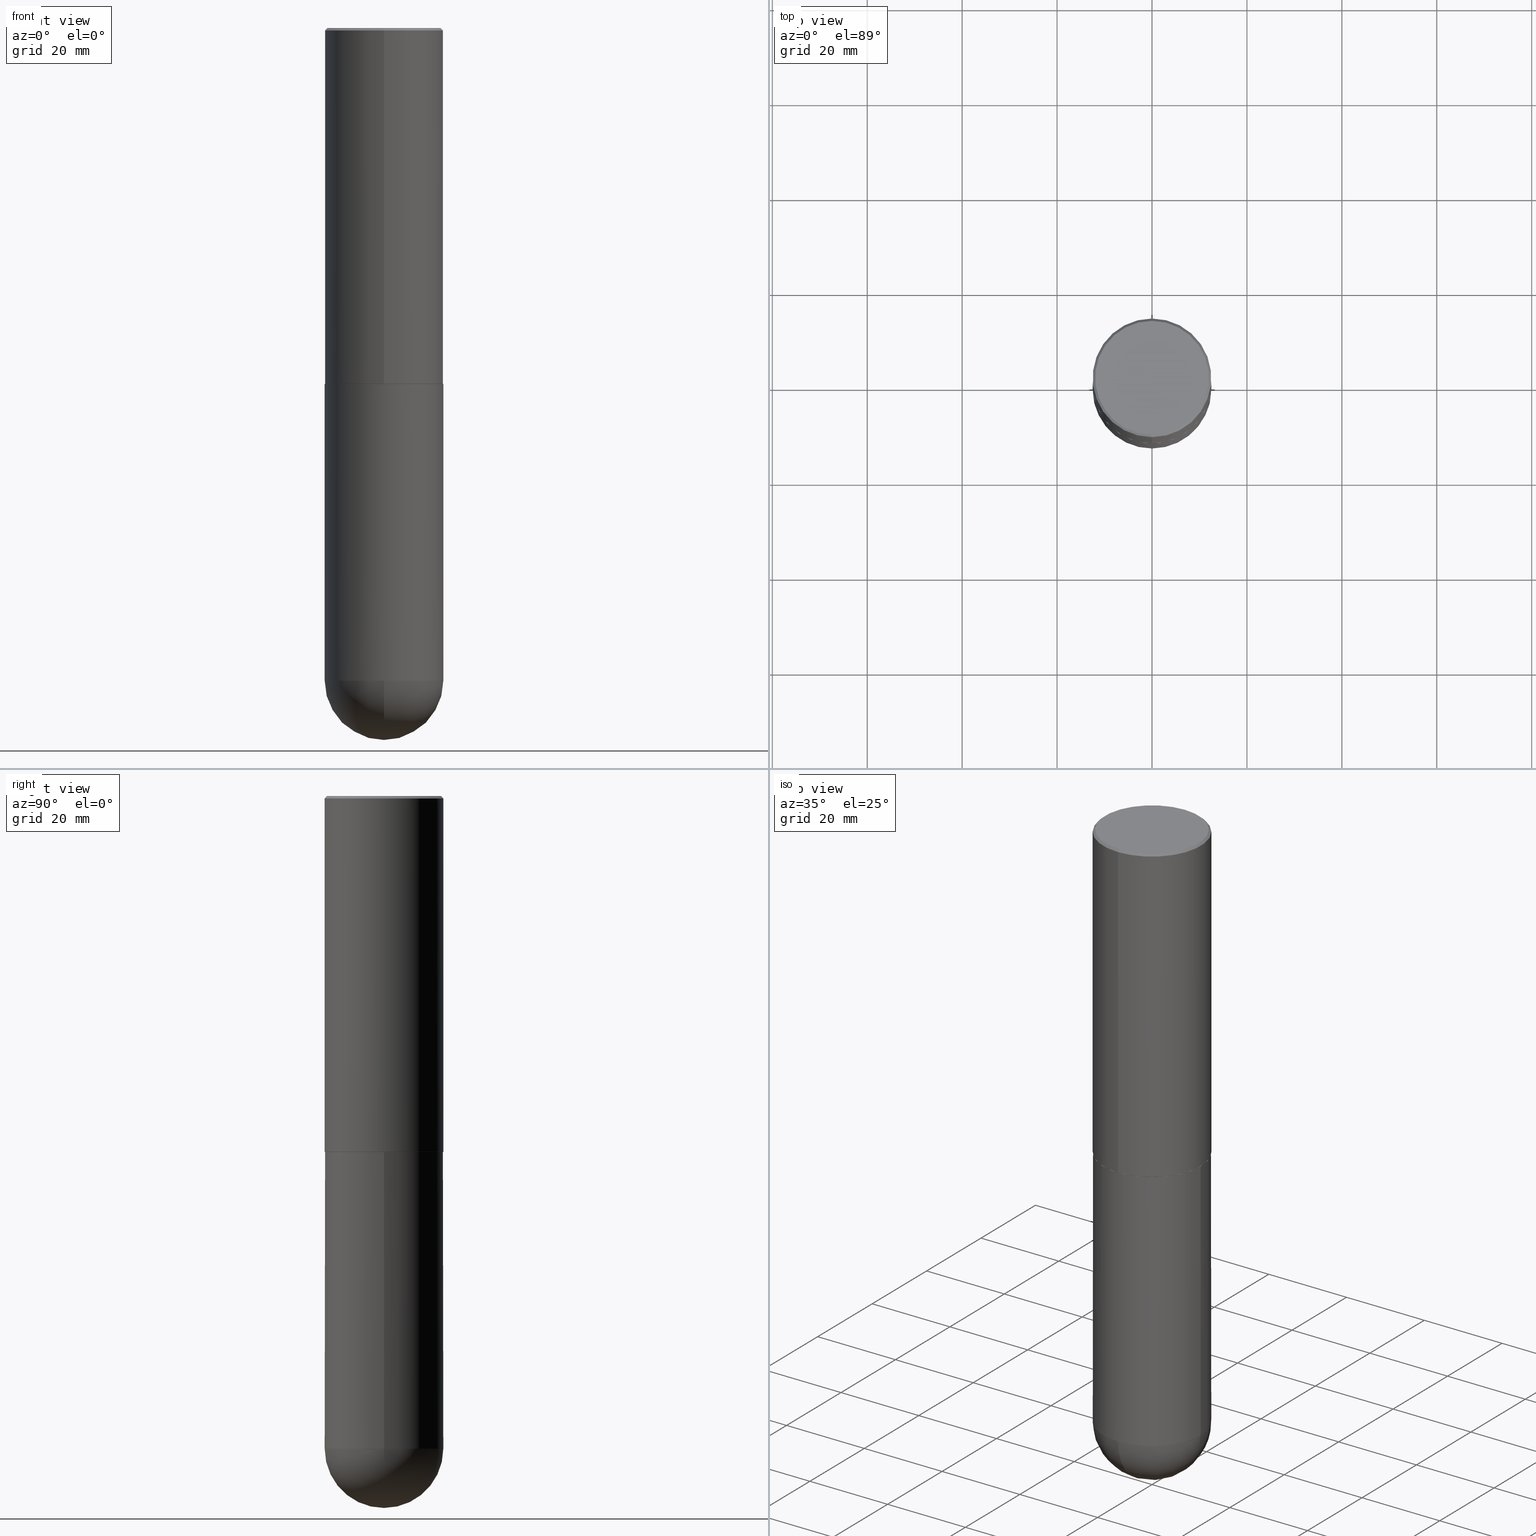
[diagram: canonical four-view strip — front | top / right | iso, engineering-drawing reading convention]
A machine part, canonical four-view strip (front | top / right | iso — engineering-drawing reading convention). The complete STEP part file that produces these views, byte-faithful:
ISO-10303-21;
HEADER;
FILE_DESCRIPTION (( 'STEP AP203' ),
    '1' );
FILE_NAME ('70550.STEP',
    '2024-04-10T12:35:27',
    ( '' ),
    ( '' ),
    'SwSTEP 2.0',
    'SolidWorks 2023',
    '' );
FILE_SCHEMA (( 'CONFIG_CONTROL_DESIGN' ));
ENDSEC;

DATA;
#1 = CIRCLE ( 'NONE', #120, 0.4911499999999999755 ) ;
#2 = AXIS2_PLACEMENT_3D ( 'NONE', #82, #268, #372 ) ;
#3 = VERTEX_POINT ( 'NONE', #152 ) ;
#4 = CARTESIAN_POINT ( 'NONE',  ( 3.297005828269569180E-15, 0.4721499999999997921, -1.531037957893813463E-15 ) ) ;
#5 = EDGE_CURVE ( 'NONE', #62, #41, #293, .T. ) ;
#6 = FACE_OUTER_BOUND ( 'NONE', #342, .T. ) ;
#7 = DIRECTION ( 'NONE',  ( -6.982962677686266711E-15, -1.000000000000000000, 3.491138808870824878E-15 ) ) ;
#8 = CARTESIAN_POINT ( 'NONE',  ( 1.290705878404842200E-28, -1.937479287376659043E-14, -5.413349999999999440 ) ) ;
#9 = PRODUCT_RELATED_PRODUCT_CATEGORY ( 'detail', '', ( #109 ) ) ;
#10 = APPLICATION_CONTEXT ( 'configuration controlled 3d designs of mechanical parts and assemblies' ) ;
#11 = ORIENTED_EDGE ( 'NONE', *, *, #340, .T. ) ;
#12 = DIRECTION ( 'NONE',  ( -2.445707993586407058E-29, 3.491138808870824878E-15, 1.000000000000000000 ) ) ;
#13 = APPROVAL_DATE_TIME ( #19, #376 ) ;
#14 = ORIENTED_EDGE ( 'NONE', *, *, #199, .F. ) ;
#15 = DIRECTION ( 'NONE',  ( 1.000000000000000000, -6.982962677686265922E-15, 0.000000000000000000 ) ) ;
#16 = CARTESIAN_POINT ( 'NONE',  ( 4.891415987172841090E-31, -6.982277617741688262E-17, -0.02000000000000010797 ) ) ;
#17 = EDGE_CURVE ( 'NONE', #45, #161, #35, .T. ) ;
#18 = DIRECTION ( 'NONE',  ( -2.445707993586407338E-29, 3.491138808870824484E-15, 1.000000000000000000 ) ) ;
#19 = DATE_AND_TIME ( #130, #186 ) ;
#20 = DATE_AND_TIME ( #71, #107 ) ;
#21 = DIRECTION ( 'NONE',  ( -6.982962677686265922E-15, -1.000000000000000000, 3.337287582609300506E-15 ) ) ;
#22 = ADVANCED_FACE ( 'NONE', ( #286 ), #127, .T. ) ;
#23 = CARTESIAN_POINT ( 'NONE',  ( 1.323817856196230713E-28, -1.890061050562653856E-14, -5.413349999999999440 ) ) ;
#24 = CONICAL_SURFACE ( 'NONE', #336, 0.4921500000000000319, 0.7853981633974463916 ) ;
#25 = DIRECTION ( 'NONE',  ( 6.982962677686265922E-15, 1.000000000000000000, -3.495297233588267070E-15 ) ) ;
#26 = CONICAL_SURFACE ( 'NONE', #75, 0.4911499999999999755, 0.7853981633977213939 ) ;
#27 = EDGE_LOOP ( 'NONE', ( #99, #361, #407, #371 ) ) ;
#28 = CC_DESIGN_PERSON_AND_ORGANIZATION_ASSIGNMENT ( #229, #163, ( #90 ) ) ;
#29 = ORIENTED_EDGE ( 'NONE', *, *, #17, .T. ) ;
#30 = AXIS2_PLACEMENT_3D ( 'NONE', #59, #34, #179 ) ;
#31 = ADVANCED_FACE ( 'NONE', ( #125 ), #24, .T. ) ;
#32 = CARTESIAN_POINT ( 'NONE',  ( 4.891415987172841090E-31, -6.982277617741688262E-17, -0.02000000000000010797 ) ) ;
#33 = CARTESIAN_POINT ( 'NONE',  ( -5.737788980641500358E-45, 8.190437223069574887E-31, 2.346064614290914687E-16 ) ) ;
#34 = DIRECTION ( 'NONE',  ( -2.445707993586407058E-29, 3.491138808870824878E-15, 1.000000000000000000 ) ) ;
#35 = LINE ( 'NONE', #149, #404 ) ;
#36 = EDGE_CURVE ( 'NONE', #351, #292, #227, .T. ) ;
#37 = AXIS2_PLACEMENT_3D ( 'NONE', #220, #269, #21 ) ;
#38 = DIRECTION ( 'NONE',  ( -2.445468806185136877E-29, 3.491481338843145188E-15, 1.000000000000000000 ) ) ;
#39 = ADVANCED_FACE ( 'NONE', ( #190 ), #259, .T. ) ;
#40 = LINE ( 'NONE', #362, #236 ) ;
#41 = VERTEX_POINT ( 'NONE', #390 ) ;
#42 = DIRECTION ( 'NONE',  ( 2.438088387897960049E-29, -3.491481338843145188E-15, -1.000000000000000000 ) ) ;
#43 = ORIENTED_EDGE ( 'NONE', *, *, #147, .F. ) ;
#44 = PLANE ( 'NONE',  #141 ) ;
#45 = VERTEX_POINT ( 'NONE', #70 ) ;
#46 = CARTESIAN_POINT ( 'NONE',  ( 0.4921499999999999764, -1.374596203102545079E-14, -2.952700000000000102 ) ) ;
#47 = DATE_AND_TIME ( #49, #111 ) ;
#48 = FACE_OUTER_BOUND ( 'NONE', #222, .T. ) ;
#49 = CALENDAR_DATE ( 2024, 10, 4 ) ;
#50 = ADVANCED_FACE ( 'NONE', ( #76 ), #44, .F. ) ;
#51 = CYLINDRICAL_SURFACE ( 'NONE', #2, 0.4921499999999999764 ) ;
#52 = ADVANCED_FACE ( 'NONE', ( #73 ), #393, .T. ) ;
#53 = CC_DESIGN_PERSON_AND_ORGANIZATION_ASSIGNMENT ( #335, #79, ( #55 ) ) ;
#54 = ORIENTED_EDGE ( 'NONE', *, *, #36, .T. ) ;
#55 = PRODUCT_DEFINITION_FORMATION_WITH_SPECIFIED_SOURCE ( 'ANY', '', #109, .NOT_KNOWN. ) ;
#56 = DIRECTION ( 'NONE',  ( 1.000000000000000000, -6.982962677686265922E-15, 0.000000000000000000 ) ) ;
#57 = CIRCLE ( 'NONE', #312, 0.4921500000000003094 ) ;
#58 = CARTESIAN_POINT ( 'NONE',  ( 7.221441992662584645E-29, -1.030828556095288414E-14, -2.952700000000000102 ) ) ;
#59 = CARTESIAN_POINT ( 'NONE',  ( 4.891415987172841090E-31, -6.982277617741688262E-17, -0.02000000000000010797 ) ) ;
#60 = EDGE_LOOP ( 'NONE', ( #249, #315, #385, #235 ) ) ;
#61 = CARTESIAN_POINT ( 'NONE',  ( 0.000000000000000000, 0.000000000000000000, 0.000000000000000000 ) ) ;
#62 = VERTEX_POINT ( 'NONE', #187 ) ;
#63 = CARTESIAN_POINT ( 'NONE',  ( 3.496936074043371157E-15, 0.4921499999999900399, -2.951700000000001545 ) ) ;
#64 =( GEOMETRIC_REPRESENTATION_CONTEXT ( 3 ) GLOBAL_UNCERTAINTY_ASSIGNED_CONTEXT ( ( #93 ) ) GLOBAL_UNIT_ASSIGNED_CONTEXT ( ( #341, #277, #145 ) ) REPRESENTATION_CONTEXT ( 'NONE', 'WORKASPACE' ) );
#65 =( LENGTH_UNIT ( ) NAMED_UNIT ( * ) SI_UNIT ( $, .METRE. ) );
#66 = VERTEX_POINT ( 'NONE', #398 ) ;
#67 = DIRECTION ( 'NONE',  ( -1.000000000000000000, 6.982962677686265922E-15, -4.876176775795935793E-29 ) ) ;
#68 = APPROVAL_STATUS ( 'not_yet_approved' ) ;
#69 = EDGE_LOOP ( 'NONE', ( #146, #328, #383, #377, #43 ) ) ;
#70 = CARTESIAN_POINT ( 'NONE',  ( -0.4921499999999999764, -1.110801765337101862E-14, -5.413349999999999440 ) ) ;
#71 = CALENDAR_DATE ( 2024, 10, 4 ) ;
#72 = EDGE_LOOP ( 'NONE', ( #233, #349, #382, #85 ) ) ;
#73 = FACE_OUTER_BOUND ( 'NONE', #210, .T. ) ;
#74 = AXIS2_PLACEMENT_3D ( 'NONE', #295, #200, #134 ) ;
#75 = AXIS2_PLACEMENT_3D ( 'NONE', #58, #148, #317 ) ;
#76 = FACE_OUTER_BOUND ( 'NONE', #358, .T. ) ;
#77 = COORDINATED_UNIVERSAL_TIME_OFFSET ( 5, 0, .BEHIND. ) ;
#78 = EDGE_CURVE ( 'NONE', #101, #66, #213, .T. ) ;
#79 = PERSON_AND_ORGANIZATION_ROLE ( 'creator' ) ;
#80 = CC_DESIGN_PERSON_AND_ORGANIZATION_ASSIGNMENT ( #221, #136, ( #98 ) ) ;
#81 = EDGE_CURVE ( 'NONE', #3, #101, #197, .T. ) ;
#82 = CARTESIAN_POINT ( 'NONE',  ( 0.000000000000000000, 0.000000000000000000, 0.000000000000000000 ) ) ;
#83 = CIRCLE ( 'NONE', #321, 0.4921499999999999764 ) ;
#84 = AXIS2_PLACEMENT_3D ( 'NONE', #97, #12, #128 ) ;
#85 = ORIENTED_EDGE ( 'NONE', *, *, #177, .F. ) ;
#86 = AXIS2_PLACEMENT_3D ( 'NONE', #243, #322, #326 ) ;
#87 = AXIS2_PLACEMENT_3D ( 'NONE', #167, #305, #403 ) ;
#88 = DIRECTION ( 'NONE',  ( -6.982962677686265922E-15, -1.000000000000000000, 3.491138808870824878E-15 ) ) ;
#89 = VERTEX_POINT ( 'NONE', #298 ) ;
#90 = PRODUCT_DEFINITION ( 'UNKNOWN', '', #55, #370 ) ;
#91 = DIRECTION ( 'NONE',  ( -4.851104656540954020E-15, -0.7071067811865485719, -0.7071067811865464625 ) ) ;
#92 = ORIENTED_EDGE ( 'NONE', *, *, #240, .F. ) ;
#93 = UNCERTAINTY_MEASURE_WITH_UNIT (LENGTH_MEASURE( 1.000000000000000082E-05 ), #341, 'distance_accuracy_value', 'NONE');
#94 = DIRECTION ( 'NONE',  ( 6.982962677686266711E-15, 1.000000000000000000, -4.440675393541420887E-15 ) ) ;
#95 = CARTESIAN_POINT ( 'NONE',  ( 3.366835455046432873E-15, 0.4721499999999997921, -1.413734727179267828E-15 ) ) ;
#96 = ORIENTED_EDGE ( 'NONE', *, *, #264, .F. ) ;
#97 = CARTESIAN_POINT ( 'NONE',  ( 7.221441992662584645E-29, -1.030828556095288414E-14, -2.952700000000000102 ) ) ;
#98 = SECURITY_CLASSIFICATION ( '', '', #257 ) ;
#99 = ORIENTED_EDGE ( 'NONE', *, *, #340, .F. ) ;
#100 = CARTESIAN_POINT ( 'NONE',  ( 7.220735744022852519E-29, -1.030929694920215502E-14, -2.952700000000000102 ) ) ;
#101 = VERTEX_POINT ( 'NONE', #63 ) ;
#102 = DIRECTION ( 'NONE',  ( -6.982962677686265922E-15, -1.000000000000000000, 3.337287582609300506E-15 ) ) ;
#103 = COORDINATED_UNIVERSAL_TIME_OFFSET ( 5, 0, .BEHIND. ) ;
#104 = DIRECTION ( 'NONE',  ( 2.445707993586407058E-29, -3.491138808870824878E-15, -1.000000000000000000 ) ) ;
#105 = CARTESIAN_POINT ( 'NONE',  ( 7.220735744022852519E-29, -1.030929694920215502E-14, -2.952700000000000102 ) ) ;
#106 = ADVANCED_FACE ( 'NONE', ( #48 ), #386, .F. ) ;
#107 = LOCAL_TIME ( 8, 35, 27.00000000000000000, #77 ) ;
#108 = CC_DESIGN_PERSON_AND_ORGANIZATION_ASSIGNMENT ( #365, #402, ( #55 ) ) ;
#109 = PRODUCT ( '70550', '70550', '', ( #296 ) ) ;
#110 = FACE_OUTER_BOUND ( 'NONE', #69, .T. ) ;
#111 = LOCAL_TIME ( 8, 35, 27.00000000000000000, #218 ) ;
#112 = EDGE_CURVE ( 'NONE', #239, #89, #1, .T. ) ;
#113 = CARTESIAN_POINT ( 'NONE',  ( 1.323817856196230713E-28, -1.890061050562653856E-14, -5.413349999999999440 ) ) ;
#114 = EDGE_CURVE ( 'NONE', #172, #161, #184, .T. ) ;
#115 = AXIS2_PLACEMENT_3D ( 'NONE', #217, #157, #247 ) ;
#116 = DIRECTION ( 'NONE',  ( -6.982962677686266711E-15, -1.000000000000000000, 3.491138808870824878E-15 ) ) ;
#117 = EDGE_CURVE ( 'NONE', #41, #45, #83, .T. ) ;
#118 = CARTESIAN_POINT ( 'NONE',  ( 1.323817856196230713E-28, -1.890061050562653856E-14, -5.413349999999999440 ) ) ;
#119 = ORIENTED_EDGE ( 'NONE', *, *, #147, .T. ) ;
#120 = AXIS2_PLACEMENT_3D ( 'NONE', #384, #284, #102 ) ;
#121 = ADVANCED_FACE ( 'NONE', ( #327 ), #155, .T. ) ;
#122 = ORIENTED_EDGE ( 'NONE', *, *, #112, .F. ) ;
#123 = DIRECTION ( 'NONE',  ( -2.445707993586407338E-29, 3.491138808870824484E-15, 1.000000000000000000 ) ) ;
#124 = DIRECTION ( 'NONE',  ( -2.445707993586407058E-29, 3.491138808870824484E-15, 1.000000000000000000 ) ) ;
#125 = FACE_OUTER_BOUND ( 'NONE', #27, .T. ) ;
#126 = LINE ( 'NONE', #226, #237 ) ;
#127 = CYLINDRICAL_SURFACE ( 'NONE', #158, 0.4921500000000001984 ) ;
#128 = DIRECTION ( 'NONE',  ( -6.982962677686265922E-15, -1.000000000000000000, 3.337287582609300506E-15 ) ) ;
#129 = VECTOR ( 'NONE', #204, 39.37007874015748143 ) ;
#130 = CALENDAR_DATE ( 2024, 10, 4 ) ;
#131 = ORIENTED_EDGE ( 'NONE', *, *, #177, .T. ) ;
#132 = CARTESIAN_POINT ( 'NONE',  ( 0.000000000000000000, 0.000000000000000000, 0.000000000000000000 ) ) ;
#133 = DIRECTION ( 'NONE',  ( -6.982962677686265922E-15, -1.000000000000000000, 3.491138808870824878E-15 ) ) ;
#134 = DIRECTION ( 'NONE',  ( 6.982962677686266711E-15, 1.000000000000000000, -4.440675393541420887E-15 ) ) ;
#135 = AXIS2_PLACEMENT_3D ( 'NONE', #260, #397, #133 ) ;
#136 = PERSON_AND_ORGANIZATION_ROLE ( 'classification_officer' ) ;
#137 = ADVANCED_BREP_SHAPE_REPRESENTATION ( '70550', ( #290, #280, #231 ), #64 ) ;
#138 = AXIS2_PLACEMENT_3D ( 'NONE', #171, #309, #116 ) ;
#139 = LINE ( 'NONE', #272, #389 ) ;
#140 = ORIENTED_EDGE ( 'NONE', *, *, #211, .T. ) ;
#141 = AXIS2_PLACEMENT_3D ( 'NONE', #4, #162, #333 ) ;
#142 = CIRCLE ( 'NONE', #37, 0.4911499999999999755 ) ;
#143 = DIRECTION ( 'NONE',  ( 1.000000000000000000, -6.982962677686265922E-15, 0.000000000000000000 ) ) ;
#144 = DIRECTION ( 'NONE',  ( -2.445468806185136597E-29, 3.491481338843145583E-15, 1.000000000000000000 ) ) ;
#145 =( NAMED_UNIT ( * ) SI_UNIT ( $, .STERADIAN. ) SOLID_ANGLE_UNIT ( ) );
#146 = ORIENTED_EDGE ( 'NONE', *, *, #17, .F. ) ;
#147 = EDGE_CURVE ( 'NONE', #161, #172, #387, .T. ) ;
#148 = DIRECTION ( 'NONE',  ( -2.445707993586407058E-29, 3.491138808870824878E-15, 1.000000000000000000 ) ) ;
#149 = CARTESIAN_POINT ( 'NONE',  ( -0.4921499999999999764, 3.496936074043332897E-15, -2.420853904668951509E-29 ) ) ;
#150 = AXIS2_PLACEMENT_3D ( 'NONE', #100, #193, #329 ) ;
#151 = CC_DESIGN_SECURITY_CLASSIFICATION ( #98, ( #55 ) ) ;
#152 = CARTESIAN_POINT ( 'NONE',  ( -3.436665081823225568E-15, -0.4921500000000106345, -2.951699999999998436 ) ) ;
#153 = FACE_OUTER_BOUND ( 'NONE', #60, .T. ) ;
#154 = ORIENTED_EDGE ( 'NONE', *, *, #264, .T. ) ;
#155 = CYLINDRICAL_SURFACE ( 'NONE', #216, 0.4921499999999999764 ) ;
#156 = ORIENTED_EDGE ( 'NONE', *, *, #117, .F. ) ;
#157 = DIRECTION ( 'NONE',  ( -2.445707993586407058E-29, 3.491138808870824878E-15, 1.000000000000000000 ) ) ;
#158 = AXIS2_PLACEMENT_3D ( 'NONE', #252, #281, #7 ) ;
#159 = VECTOR ( 'NONE', #91, 39.37007874015748143 ) ;
#160 = DATE_TIME_ROLE ( 'creation_date' ) ;
#161 = VERTEX_POINT ( 'NONE', #223 ) ;
#162 = DIRECTION ( 'NONE',  ( 2.445707993586407058E-29, -3.491138808870824484E-15, -1.000000000000000000 ) ) ;
#163 = PERSON_AND_ORGANIZATION_ROLE ( 'creator' ) ;
#164 = DIRECTION ( 'NONE',  ( 2.445707993586407058E-29, -3.491138808870824878E-15, -1.000000000000000000 ) ) ;
#165 = APPLICATION_PROTOCOL_DEFINITION ( 'international standard', 'config_control_design', 1994, #10 ) ;
#166 = APPROVAL_PERSON_ORGANIZATION ( #400, #399, #191 ) ;
#167 = CARTESIAN_POINT ( 'NONE',  ( 4.891415987172841090E-31, -6.982277617741688262E-17, -0.02000000000000010797 ) ) ;
#168 = CONICAL_SURFACE ( 'NONE', #84, 0.4911499999999999755, 0.7853981633977213939 ) ;
#169 = DIRECTION ( 'NONE',  ( -2.445468806185136597E-29, 3.491481338843145583E-15, 1.000000000000000000 ) ) ;
#170 = EDGE_CURVE ( 'NONE', #89, #101, #40, .T. ) ;
#171 = CARTESIAN_POINT ( 'NONE',  ( 0.000000000000000000, 0.000000000000000000, 0.000000000000000000 ) ) ;
#172 = VERTEX_POINT ( 'NONE', #46 ) ;
#173 = PERSON ( 'UNSPECIFIED', 'UNSPECIFIED', 'UNSPECIFIED', ('UNSPECIFIED'), ('UNSPECIFIED'), ('UNSPECIFIED') ) ;
#174 = CARTESIAN_POINT ( 'NONE',  ( 0.4921499999999999764, -1.804161880923764651E-14, -5.413349999999999440 ) ) ;
#175 = ORIENTED_EDGE ( 'NONE', *, *, #78, .F. ) ;
#176 = AXIS2_PLACEMENT_3D ( 'NONE', #325, #124, #287 ) ;
#177 = EDGE_CURVE ( 'NONE', #3, #212, #126, .T. ) ;
#178 = EDGE_LOOP ( 'NONE', ( #175, #258, #131, #96 ) ) ;
#179 = DIRECTION ( 'NONE',  ( -6.982962677686265922E-15, -1.000000000000000000, 3.495297233588267070E-15 ) ) ;
#180 = DIRECTION ( 'NONE',  ( -2.445707993586407058E-29, 3.491138808870824878E-15, 1.000000000000000000 ) ) ;
#181 = ORIENTED_EDGE ( 'NONE', *, *, #355, .T. ) ;
#182 = DIRECTION ( 'NONE',  ( -2.445468806185136597E-29, 3.491481338843145583E-15, 1.000000000000000000 ) ) ;
#183 = EDGE_LOOP ( 'NONE', ( #214, #29, #195, #354, #207 ) ) ;
#184 = CIRCLE ( 'NONE', #150, 0.4921499999999999764 ) ;
#185 = ADVANCED_FACE ( 'NONE', ( #153 ), #168, .T. ) ;
#186 = LOCAL_TIME ( 8, 35, 27.00000000000000000, #301 ) ;
#187 = CARTESIAN_POINT ( 'NONE',  ( 1.413163976147341948E-28, -2.106298991856822883E-14, -5.905499999999999972 ) ) ;
#188 = DIRECTION ( 'NONE',  ( -7.105427357601001070E-15, -1.000000000000000000, 0.000000000000000000 ) ) ;
#189 = ORIENTED_EDGE ( 'NONE', *, *, #112, .T. ) ;
#190 = FACE_OUTER_BOUND ( 'NONE', #313, .T. ) ;
#191 = APPROVAL_ROLE ( '' ) ;
#192 = ORIENTED_EDGE ( 'NONE', *, *, #5, .F. ) ;
#193 = DIRECTION ( 'NONE',  ( -2.445468806185136597E-29, 3.491481338843145583E-15, 1.000000000000000000 ) ) ;
#194 = APPROVAL_ROLE ( '' ) ;
#195 = ORIENTED_EDGE ( 'NONE', *, *, #114, .F. ) ;
#196 = DIRECTION ( 'NONE',  ( 5.024295867789434219E-15, 0.7071067811867430830, 0.7071067811863519514 ) ) ;
#197 = CIRCLE ( 'NONE', #115, 0.4921500000000003094 ) ;
#198 = CIRCLE ( 'NONE', #87, 0.4921500000000000319 ) ;
#199 = EDGE_CURVE ( 'NONE', #89, #239, #142, .T. ) ;
#200 = DIRECTION ( 'NONE',  ( -1.000000000000000000, 6.982962677686266711E-15, -4.883557194083112901E-29 ) ) ;
#201 = CALENDAR_DATE ( 2024, 10, 4 ) ;
#202 = PERSON_AND_ORGANIZATION ( #173, #228 ) ;
#203 = AXIS2_PLACEMENT_3D ( 'NONE', #105, #324, #15 ) ;
#204 = DIRECTION ( 'NONE',  ( 4.937700262164537787E-15, 0.7071067811865436870, -0.7071067811865513475 ) ) ;
#205 = LINE ( 'NONE', #232, #129 ) ;
#206 = FACE_OUTER_BOUND ( 'NONE', #178, .T. ) ;
#207 = ORIENTED_EDGE ( 'NONE', *, *, #279, .T. ) ;
#208 = CARTESIAN_POINT ( 'NONE',  ( 7.218996284668997343E-29, -1.030479442214401424E-14, -2.951700000000000212 ) ) ;
#209 = CC_DESIGN_APPROVAL ( #399, ( #90 ) ) ;
#210 = EDGE_LOOP ( 'NONE', ( #192, #181, #388, #156 ) ) ;
#211 = EDGE_CURVE ( 'NONE', #351, #66, #205, .T. ) ;
#212 = VERTEX_POINT ( 'NONE', #314 ) ;
#213 = LINE ( 'NONE', #250, #253 ) ;
#214 = ORIENTED_EDGE ( 'NONE', *, *, #117, .T. ) ;
#215 = CC_DESIGN_PERSON_AND_ORGANIZATION_ASSIGNMENT ( #367, #363, ( #109 ) ) ;
#216 = AXIS2_PLACEMENT_3D ( 'NONE', #132, #289, #256 ) ;
#217 = CARTESIAN_POINT ( 'NONE',  ( 7.218996284668997343E-29, -1.030479442214401424E-14, -2.951700000000000212 ) ) ;
#218 = COORDINATED_UNIVERSAL_TIME_OFFSET ( 5, 0, .BEHIND. ) ;
#219 = EDGE_LOOP ( 'NONE', ( #122, #14 ) ) ;
#220 = CARTESIAN_POINT ( 'NONE',  ( 7.221441992662584645E-29, -1.030828556095288414E-14, -2.952700000000000102 ) ) ;
#221 = PERSON_AND_ORGANIZATION ( #173, #228 ) ;
#222 = EDGE_LOOP ( 'NONE', ( #275, #119 ) ) ;
#223 = CARTESIAN_POINT ( 'NONE',  ( -0.4921499999999999764, -1.110801765337101547E-14, -2.952700000000000102 ) ) ;
#224 = ADVANCED_FACE ( 'NONE', ( #206 ), #408, .T. ) ;
#225 = DATE_AND_TIME ( #201, #375 ) ;
#226 = CARTESIAN_POINT ( 'NONE',  ( -3.436665081823297354E-15, -0.4921500000000001984, 1.718163964785777103E-15 ) ) ;
#227 = CIRCLE ( 'NONE', #135, 0.4721499999999997921 ) ;
#228 = ORGANIZATION ( 'UNSPECIFIED', 'UNSPECIFIED', '' ) ;
#229 = PERSON_AND_ORGANIZATION ( #173, #228 ) ;
#230 = ADVANCED_FACE ( 'NONE', ( #378 ), #303, .T. ) ;
#231 = AXIS2_PLACEMENT_3D ( 'NONE', #61, #395, #357 ) ;
#232 = CARTESIAN_POINT ( 'NONE',  ( 3.436665081823296565E-15, 0.4921499999999999764, -0.02000000000000182535 ) ) ;
#233 = ORIENTED_EDGE ( 'NONE', *, *, #81, .T. ) ;
#234 = CARTESIAN_POINT ( 'NONE',  ( -3.307789109625542536E-15, -0.4721499999999997921, 1.882947650037450765E-15 ) ) ;
#235 = ORIENTED_EDGE ( 'NONE', *, *, #311, .F. ) ;
#236 = VECTOR ( 'NONE', #196, 39.37007874015748143 ) ;
#237 = VECTOR ( 'NONE', #18, 39.37007874015748143 ) ;
#238 = DIMENSIONAL_EXPONENTS ( 1.000000000000000000, 0.000000000000000000, 0.000000000000000000, 0.000000000000000000, 0.000000000000000000, 0.000000000000000000, 0.000000000000000000 ) ;
#239 = VERTEX_POINT ( 'NONE', #274 ) ;
#240 = EDGE_CURVE ( 'NONE', #246, #318, #270, .T. ) ;
#241 = CARTESIAN_POINT ( 'NONE',  ( -3.376394089603258656E-15, -0.4921500000000000874, -0.01999999999999838712 ) ) ;
#242 = LENGTH_MEASURE_WITH_UNIT ( LENGTH_MEASURE( 0.02539999999999999897 ), #65 );
#243 = CARTESIAN_POINT ( 'NONE',  ( 1.290705878404842200E-28, -1.937479287376659043E-14, -5.413349999999999440 ) ) ;
#244 = CIRCLE ( 'NONE', #255, 0.4921499999999999764 ) ;
#245 = EDGE_CURVE ( 'NONE', #239, #3, #139, .T. ) ;
#246 = VERTEX_POINT ( 'NONE', #316 ) ;
#247 = DIRECTION ( 'NONE',  ( -6.982962677686265922E-15, -1.000000000000000000, 3.330506545156063891E-15 ) ) ;
#248 = DIRECTION ( 'NONE',  ( -1.000000000000000000, 7.105427357601001070E-15, -4.926315508542082329E-29 ) ) ;
#249 = ORIENTED_EDGE ( 'NONE', *, *, #170, .F. ) ;
#250 = CARTESIAN_POINT ( 'NONE',  ( 3.496936074043333686E-15, 0.4921500000000001984, -1.718163964785777103E-15 ) ) ;
#251 = PLANE ( 'NONE',  #176 ) ;
#252 = CARTESIAN_POINT ( 'NONE',  ( 0.000000000000000000, 0.000000000000000000, 0.000000000000000000 ) ) ;
#253 = VECTOR ( 'NONE', #123, 39.37007874015748143 ) ;
#254 = APPROVAL_DATE_TIME ( #266, #283 ) ;
#255 = AXIS2_PLACEMENT_3D ( 'NONE', #23, #169, #56 ) ;
#256 = DIRECTION ( 'NONE',  ( 1.000000000000000000, -6.982962677686265922E-15, 4.876176775795935793E-29 ) ) ;
#257 = SECURITY_CLASSIFICATION_LEVEL ( 'unclassified' ) ;
#258 = ORIENTED_EDGE ( 'NONE', *, *, #311, .T. ) ;
#259 = SPHERICAL_SURFACE ( 'NONE', #74, 0.4921500000000000874 ) ;
#260 = CARTESIAN_POINT ( 'NONE',  ( -5.737788980641500358E-45, 8.190437223069574887E-31, 2.346064614290914687E-16 ) ) ;
#261 = DIRECTION ( 'NONE',  ( 1.000000000000000000, -6.982962677686265922E-15, 0.000000000000000000 ) ) ;
#262 = AXIS2_PLACEMENT_3D ( 'NONE', #8, #359, #94 ) ;
#263 = CIRCLE ( 'NONE', #307, 0.4921499999999999764 ) ;
#264 = EDGE_CURVE ( 'NONE', #66, #212, #331, .T. ) ;
#265 = DATE_TIME_ROLE ( 'classification_date' ) ;
#266 = DATE_AND_TIME ( #401, #271 ) ;
#267 = PRODUCT_DEFINITION_SHAPE ( 'NONE', 'NONE',  #90 ) ;
#268 = DIRECTION ( 'NONE',  ( -2.445468806185136597E-29, 3.491481338843145583E-15, 1.000000000000000000 ) ) ;
#269 = DIRECTION ( 'NONE',  ( -2.445707993586407058E-29, 3.491138808870824878E-15, 1.000000000000000000 ) ) ;
#270 = CIRCLE ( 'NONE', #380, 0.4921499999999999764 ) ;
#271 = LOCAL_TIME ( 8, 35, 27.00000000000000000, #391 ) ;
#272 = CARTESIAN_POINT ( 'NONE',  ( -3.429682119145537187E-15, -0.4911500000000103006, -2.952699999999998326 ) ) ;
#273 = ADVANCED_FACE ( 'NONE', ( #110 ), #51, .T. ) ;
#274 = CARTESIAN_POINT ( 'NONE',  ( -3.429682119145537187E-15, -0.4911500000000103006, -2.952699999999998326 ) ) ;
#275 = ORIENTED_EDGE ( 'NONE', *, *, #114, .T. ) ;
#276 = VECTOR ( 'NONE', #345, 39.37007874015748143 ) ;
#277 =( NAMED_UNIT ( * ) PLANE_ANGLE_UNIT ( ) SI_UNIT ( $, .RADIAN. ) );
#278 = DIRECTION ( 'NONE',  ( 1.000000000000000000, -6.982962677686265922E-15, 0.000000000000000000 ) ) ;
#279 = EDGE_CURVE ( 'NONE', #318, #41, #244, .T. ) ;
#280 = MANIFOLD_SOLID_BREP ( 'Body-Move/Copy2[2]', #302 ) ;
#281 = DIRECTION ( 'NONE',  ( -2.445707993586407058E-29, 3.491138808870824878E-15, 1.000000000000000000 ) ) ;
#282 = APPROVAL_PERSON_ORGANIZATION ( #334, #376, #194 ) ;
#283 = APPROVAL ( #291, 'UNSPECIFIED' ) ;
#284 = DIRECTION ( 'NONE',  ( -2.445707993586407058E-29, 3.491138808870824878E-15, 1.000000000000000000 ) ) ;
#285 = FACE_OUTER_BOUND ( 'NONE', #219, .T. ) ;
#286 = FACE_OUTER_BOUND ( 'NONE', #72, .T. ) ;
#287 = DIRECTION ( 'NONE',  ( -6.982962677686265922E-15, -1.000000000000000000, 3.491138808870824484E-15 ) ) ;
#288 = ORIENTED_EDGE ( 'NONE', *, *, #279, .F. ) ;
#289 = DIRECTION ( 'NONE',  ( -2.445468806185136597E-29, 3.491481338843145583E-15, 1.000000000000000000 ) ) ;
#290 = MANIFOLD_SOLID_BREP ( 'Body-Move/Copy2[1]', #343 ) ;
#291 = APPROVAL_STATUS ( 'not_yet_approved' ) ;
#292 = VERTEX_POINT ( 'NONE', #234 ) ;
#293 = CIRCLE ( 'NONE', #86, 0.4921500000000000874 ) ;
#294 = AXIS2_PLACEMENT_3D ( 'NONE', #33, #180, #88 ) ;
#295 = CARTESIAN_POINT ( 'NONE',  ( 1.290705878404842200E-28, -1.937479287376659043E-14, -5.413349999999999440 ) ) ;
#296 = MECHANICAL_CONTEXT ( 'NONE', #396, 'mechanical' ) ;
#297 = DIRECTION ( 'NONE',  ( 6.982962677686265922E-15, 1.000000000000000000, -3.495297233588267070E-15 ) ) ;
#298 = CARTESIAN_POINT ( 'NONE',  ( 3.493383360364605362E-15, 0.4911499999999896504, -2.952700000000001435 ) ) ;
#299 = SHAPE_DEFINITION_REPRESENTATION ( #267, #137 ) ;
#300 = EDGE_CURVE ( 'NONE', #212, #66, #198, .T. ) ;
#301 = COORDINATED_UNIVERSAL_TIME_OFFSET ( 5, 0, .BEHIND. ) ;
#302 = CLOSED_SHELL ( 'NONE', ( #379, #22, #31, #230, #224, #185, #368, #50 ) ) ;
#303 = CONICAL_SURFACE ( 'NONE', #405, 0.4921500000000000319, 0.7853981633974463916 ) ;
#304 = APPROVAL_ROLE ( '' ) ;
#305 = DIRECTION ( 'NONE',  ( -2.445707993586407058E-29, 3.491138808870824878E-15, 1.000000000000000000 ) ) ;
#306 = EDGE_CURVE ( 'NONE', #318, #172, #339, .T. ) ;
#307 = AXIS2_PLACEMENT_3D ( 'NONE', #118, #182, #143 ) ;
#308 = ORIENTED_EDGE ( 'NONE', *, *, #5, .T. ) ;
#309 = DIRECTION ( 'NONE',  ( -2.445707993586407058E-29, 3.491138808870824878E-15, 1.000000000000000000 ) ) ;
#310 = ORIENTED_EDGE ( 'NONE', *, *, #36, .F. ) ;
#311 = EDGE_CURVE ( 'NONE', #101, #3, #57, .T. ) ;
#312 = AXIS2_PLACEMENT_3D ( 'NONE', #208, #348, #350 ) ;
#313 = EDGE_LOOP ( 'NONE', ( #392, #308, #288, #92 ) ) ;
#314 = CARTESIAN_POINT ( 'NONE',  ( -3.376394089603258656E-15, -0.4921500000000000874, -0.01999999999999838712 ) ) ;
#315 = ORIENTED_EDGE ( 'NONE', *, *, #199, .T. ) ;
#316 = CARTESIAN_POINT ( 'NONE',  ( -3.496936074043201946E-15, -0.4921500000000192387, -5.413349999999997664 ) ) ;
#317 = DIRECTION ( 'NONE',  ( -6.982962677686265922E-15, -1.000000000000000000, 3.337287582609300506E-15 ) ) ;
#318 = VERTEX_POINT ( 'NONE', #174 ) ;
#319 = CC_DESIGN_DATE_AND_TIME_ASSIGNMENT ( #47, #160, ( #90 ) ) ;
#320 = CARTESIAN_POINT ( 'NONE',  ( 0.4921499999999999764, -3.436665081823295777E-15, 2.399810400207969603E-29 ) ) ;
#321 = AXIS2_PLACEMENT_3D ( 'NONE', #352, #364, #261 ) ;
#322 = DIRECTION ( 'NONE',  ( 1.000000000000000000, -6.982962677686265922E-15, 4.883557194083112340E-29 ) ) ;
#323 = AXIS2_PLACEMENT_3D ( 'NONE', #353, #248, #188 ) ;
#324 = DIRECTION ( 'NONE',  ( -2.445468806185136597E-29, 3.491481338843145583E-15, 1.000000000000000000 ) ) ;
#325 = CARTESIAN_POINT ( 'NONE',  ( 7.221441992662584645E-29, -1.030828556095288414E-14, -2.952700000000000102 ) ) ;
#326 = DIRECTION ( 'NONE',  ( 6.982962677686265922E-15, 1.000000000000000000, 0.000000000000000000 ) ) ;
#327 = FACE_OUTER_BOUND ( 'NONE', #183, .T. ) ;
#328 = ORIENTED_EDGE ( 'NONE', *, *, #347, .T. ) ;
#329 = DIRECTION ( 'NONE',  ( 1.000000000000000000, -6.982962677686265922E-15, 0.000000000000000000 ) ) ;
#330 = ORIENTED_EDGE ( 'NONE', *, *, #81, .F. ) ;
#331 = CIRCLE ( 'NONE', #30, 0.4921500000000000319 ) ;
#332 = APPROVAL_STATUS ( 'not_yet_approved' ) ;
#333 = DIRECTION ( 'NONE',  ( 6.982962677686265922E-15, 1.000000000000000000, -3.491138808870824484E-15 ) ) ;
#334 = PERSON_AND_ORGANIZATION ( #173, #228 ) ;
#335 = PERSON_AND_ORGANIZATION ( #173, #228 ) ;
#336 = AXIS2_PLACEMENT_3D ( 'NONE', #16, #104, #297 ) ;
#337 = CC_DESIGN_APPROVAL ( #376, ( #55 ) ) ;
#338 = CC_DESIGN_APPROVAL ( #283, ( #98 ) ) ;
#339 = LINE ( 'NONE', #320, #276 ) ;
#340 = EDGE_CURVE ( 'NONE', #292, #351, #369, .T. ) ;
#341 =( CONVERSION_BASED_UNIT ( 'INCH', #242 ) LENGTH_UNIT ( ) NAMED_UNIT ( #238 ) );
#342 = EDGE_LOOP ( 'NONE', ( #189, #412, #330, #373 ) ) ;
#343 = CLOSED_SHELL ( 'NONE', ( #121, #52, #39, #106, #273 ) ) ;
#344 = APPROVAL_PERSON_ORGANIZATION ( #202, #283, #304 ) ;
#345 = DIRECTION ( 'NONE',  ( -2.445468806185136877E-29, 3.491481338843145188E-15, 1.000000000000000000 ) ) ;
#346 = EDGE_LOOP ( 'NONE', ( #410, #310, #140, #154 ) ) ;
#347 = EDGE_CURVE ( 'NONE', #45, #246, #263, .T. ) ;
#348 = DIRECTION ( 'NONE',  ( -2.445707993586407058E-29, 3.491138808870824878E-15, 1.000000000000000000 ) ) ;
#349 = ORIENTED_EDGE ( 'NONE', *, *, #78, .T. ) ;
#350 = DIRECTION ( 'NONE',  ( -6.982962677686265922E-15, -1.000000000000000000, 3.330506545156063891E-15 ) ) ;
#351 = VERTEX_POINT ( 'NONE', #95 ) ;
#352 = CARTESIAN_POINT ( 'NONE',  ( 1.323817856196230713E-28, -1.890061050562653856E-14, -5.413349999999999440 ) ) ;
#353 = CARTESIAN_POINT ( 'NONE',  ( 1.290705878404842200E-28, -1.937479287376659043E-14, -5.413349999999999440 ) ) ;
#354 = ORIENTED_EDGE ( 'NONE', *, *, #306, .F. ) ;
#355 = EDGE_CURVE ( 'NONE', #62, #246, #409, .T. ) ;
#356 = CARTESIAN_POINT ( 'NONE',  ( 3.436665081823367957E-15, 0.4921499999999896513, -2.952700000000001435 ) ) ;
#357 = DIRECTION ( 'NONE',  ( 1.000000000000000000, 0.000000000000000000, 0.000000000000000000 ) ) ;
#358 = EDGE_LOOP ( 'NONE', ( #54, #11 ) ) ;
#359 = DIRECTION ( 'NONE',  ( -1.000000000000000000, 6.982962677686266711E-15, -4.883557194083112901E-29 ) ) ;
#360 = APPROVAL_DATE_TIME ( #225, #399 ) ;
#361 = ORIENTED_EDGE ( 'NONE', *, *, #394, .T. ) ;
#362 = CARTESIAN_POINT ( 'NONE',  ( 3.489830646685803675E-15, 0.4911499999999896504, -2.952700000000001435 ) ) ;
#363 = PERSON_AND_ORGANIZATION_ROLE ( 'design_owner' ) ;
#364 = DIRECTION ( 'NONE',  ( -2.445468806185136597E-29, 3.491481338843145583E-15, 1.000000000000000000 ) ) ;
#365 = PERSON_AND_ORGANIZATION ( #173, #228 ) ;
#366 = CC_DESIGN_DATE_AND_TIME_ASSIGNMENT ( #20, #265, ( #98 ) ) ;
#367 = PERSON_AND_ORGANIZATION ( #173, #228 ) ;
#368 = ADVANCED_FACE ( 'NONE', ( #285 ), #251, .F. ) ;
#369 = CIRCLE ( 'NONE', #294, 0.4721499999999997921 ) ;
#370 = DESIGN_CONTEXT ( 'detailed design', #10, 'design' ) ;
#371 = ORIENTED_EDGE ( 'NONE', *, *, #211, .F. ) ;
#372 = DIRECTION ( 'NONE',  ( 1.000000000000000000, -6.982962677686265922E-15, 4.876176775795935793E-29 ) ) ;
#373 = ORIENTED_EDGE ( 'NONE', *, *, #245, .F. ) ;
#374 = AXIS2_PLACEMENT_3D ( 'NONE', #356, #42, #67 ) ;
#375 = LOCAL_TIME ( 8, 35, 27.00000000000000000, #103 ) ;
#376 = APPROVAL ( #68, 'UNSPECIFIED' ) ;
#377 = ORIENTED_EDGE ( 'NONE', *, *, #306, .T. ) ;
#378 = FACE_OUTER_BOUND ( 'NONE', #346, .T. ) ;
#379 = ADVANCED_FACE ( 'NONE', ( #6 ), #26, .T. ) ;
#380 = AXIS2_PLACEMENT_3D ( 'NONE', #113, #144, #278 ) ;
#381 = APPLICATION_PROTOCOL_DEFINITION ( 'international standard', 'config_control_design', 1994, #396 ) ;
#382 = ORIENTED_EDGE ( 'NONE', *, *, #300, .F. ) ;
#383 = ORIENTED_EDGE ( 'NONE', *, *, #240, .T. ) ;
#384 = CARTESIAN_POINT ( 'NONE',  ( 7.221441992662584645E-29, -1.030828556095288414E-14, -2.952700000000000102 ) ) ;
#385 = ORIENTED_EDGE ( 'NONE', *, *, #245, .T. ) ;
#386 = PLANE ( 'NONE',  #374 ) ;
#387 = CIRCLE ( 'NONE', #203, 0.4921499999999999764 ) ;
#388 = ORIENTED_EDGE ( 'NONE', *, *, #347, .F. ) ;
#389 = VECTOR ( 'NONE', #406, 39.37007874015748143 ) ;
#390 = CARTESIAN_POINT ( 'NONE',  ( 3.436665081823426728E-15, 0.4921499999999808250, -5.413350000000002105 ) ) ;
#391 = COORDINATED_UNIVERSAL_TIME_OFFSET ( 5, 0, .BEHIND. ) ;
#392 = ORIENTED_EDGE ( 'NONE', *, *, #355, .F. ) ;
#393 = SPHERICAL_SURFACE ( 'NONE', #262, 0.4921500000000000874 ) ;
#394 = EDGE_CURVE ( 'NONE', #292, #212, #411, .T. ) ;
#395 = DIRECTION ( 'NONE',  ( 0.000000000000000000, 0.000000000000000000, 1.000000000000000000 ) ) ;
#396 = APPLICATION_CONTEXT ( 'configuration controlled 3d designs of mechanical parts and assemblies' ) ;
#397 = DIRECTION ( 'NONE',  ( -2.445707993586407058E-29, 3.491138808870824878E-15, 1.000000000000000000 ) ) ;
#398 = CARTESIAN_POINT ( 'NONE',  ( 3.436665081823296565E-15, 0.4921499999999999764, -0.02000000000000182535 ) ) ;
#399 = APPROVAL ( #332, 'UNSPECIFIED' ) ;
#400 = PERSON_AND_ORGANIZATION ( #173, #228 ) ;
#401 = CALENDAR_DATE ( 2024, 10, 4 ) ;
#402 = PERSON_AND_ORGANIZATION_ROLE ( 'design_supplier' ) ;
#403 = DIRECTION ( 'NONE',  ( -6.982962677686265922E-15, -1.000000000000000000, 3.495297233588267070E-15 ) ) ;
#404 = VECTOR ( 'NONE', #38, 39.37007874015748143 ) ;
#405 = AXIS2_PLACEMENT_3D ( 'NONE', #32, #164, #25 ) ;
#406 = DIRECTION ( 'NONE',  ( -4.937700262165896205E-15, -0.7071067811867381980, 0.7071067811863568364 ) ) ;
#407 = ORIENTED_EDGE ( 'NONE', *, *, #300, .T. ) ;
#408 = CYLINDRICAL_SURFACE ( 'NONE', #138, 0.4921500000000001984 ) ;
#409 = CIRCLE ( 'NONE', #323, 0.4921500000000000874 ) ;
#410 = ORIENTED_EDGE ( 'NONE', *, *, #394, .F. ) ;
#411 = LINE ( 'NONE', #241, #159 ) ;
#412 = ORIENTED_EDGE ( 'NONE', *, *, #170, .T. ) ;
ENDSEC;
END-ISO-10303-21;
